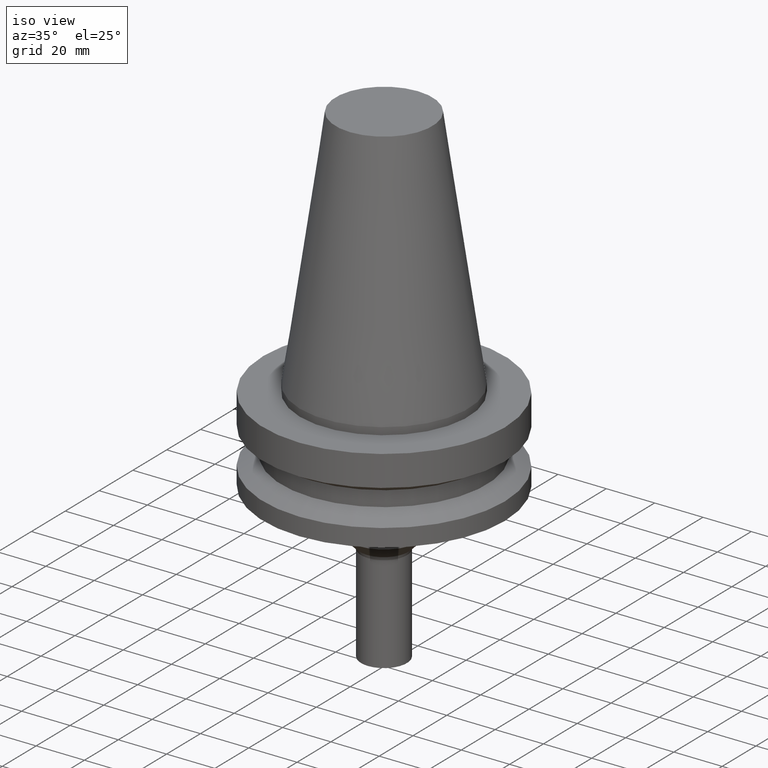
[diagram: clean part render]
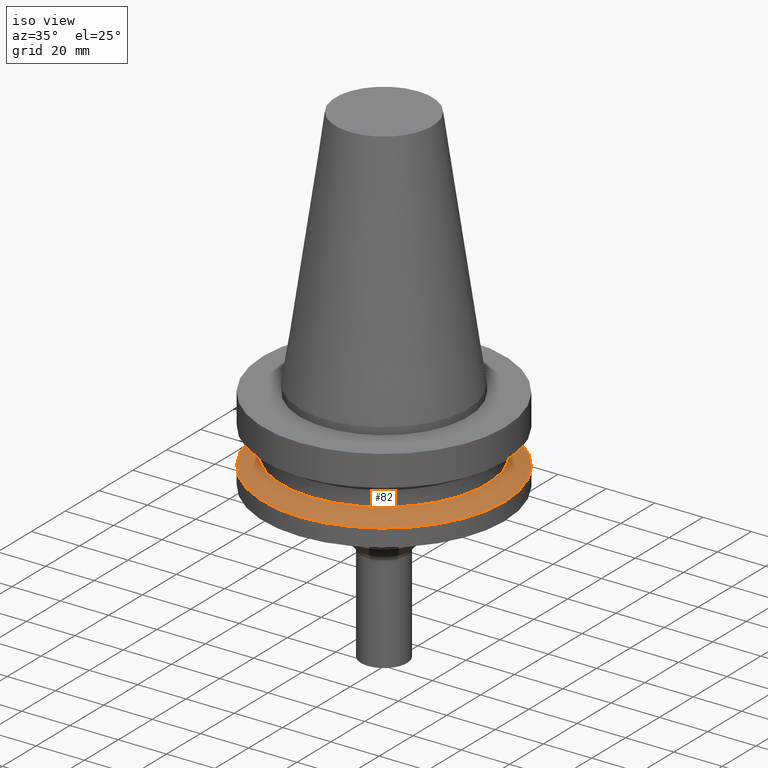
[diagram: same view with one face highlighted and labeled with its STEP entity id]
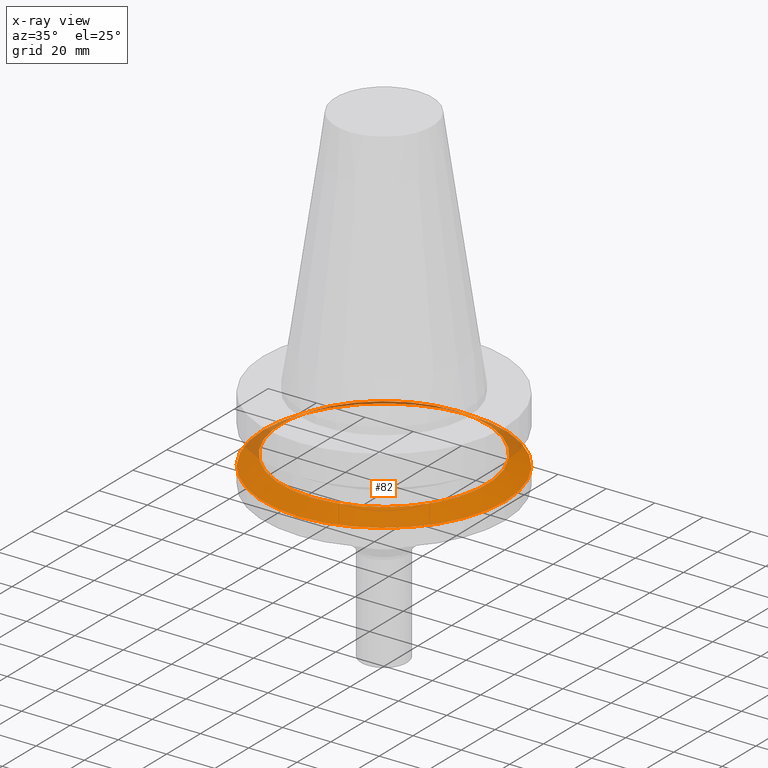
[diagram: x-ray of the same camera — body ghosted, the highlighted face saturated]
A machine part, iso view. The second image highlights one B-rep face of the part: STEP entity #82.
The next image is the same camera in x-ray: the body ghosted, the highlighted face saturated — about 12% of this face is hidden behind the body in this view.
In plain terms, the highlighted conical surface has half-angle 60 deg.
Its self-contained STEP definition (entity closure, byte-faithful):
#82=ADVANCED_FACE('',(#112,#113),#114,.T.);
#112=FACE_BOUND('',#158,.T.);
#113=FACE_BOUND('',#159,.T.);
#114=CONICAL_SURFACE('',#160,46.25,1.04719755108882);
#158=EDGE_LOOP('',(#218));
#159=EDGE_LOOP('',(#219));
#160=AXIS2_PLACEMENT_3D('',#220,#221,#222);
#218=ORIENTED_EDGE('',*,*,#269,.F.);
#219=ORIENTED_EDGE('',*,*,#268,.T.);
#220=CARTESIAN_POINT('',(1.74726093181758E-015,3.49452186363515E-015,-28.53493649));
#221=DIRECTION('',(6.12323399573676E-017,1.22464679914679E-016,-1.0));
#222=DIRECTION('',(-1.23259516440783E-032,1.0,1.22464679914679E-016));
#268=EDGE_CURVE('',#289,#289,#290,.T.);
#269=EDGE_CURVE('',#291,#291,#292,.T.);
#289=VERTEX_POINT('',#319);
#290=CIRCLE('',#320,42.5);
#291=VERTEX_POINT('',#321);
#292=CIRCLE('',#322,50.0);
#319=CARTESIAN_POINT('',(1.61468902694396E-015,42.5,-26.36987298));
#320=AXIS2_PLACEMENT_3D('',#355,#356,#357);
#321=CARTESIAN_POINT('',(1.87983283669119E-015,50.0,-30.7));
#322=AXIS2_PLACEMENT_3D('',#358,#359,#360);
#355=CARTESIAN_POINT('',(1.61468902694396E-015,3.22937805388793E-015,-26.36987298));
#356=DIRECTION('',(6.12323399573677E-017,1.22464679914687E-016,-1.0));
#357=DIRECTION('',(-1.23259516440783E-032,1.0,1.22464679914687E-016));
#358=CARTESIAN_POINT('',(1.87983283669119E-015,3.75966567338237E-015,-30.7));
#359=DIRECTION('',(6.12323399573677E-017,1.22464679914672E-016,-1.0));
#360=DIRECTION('',(-1.23259516440783E-032,1.0,1.22464679914672E-016));